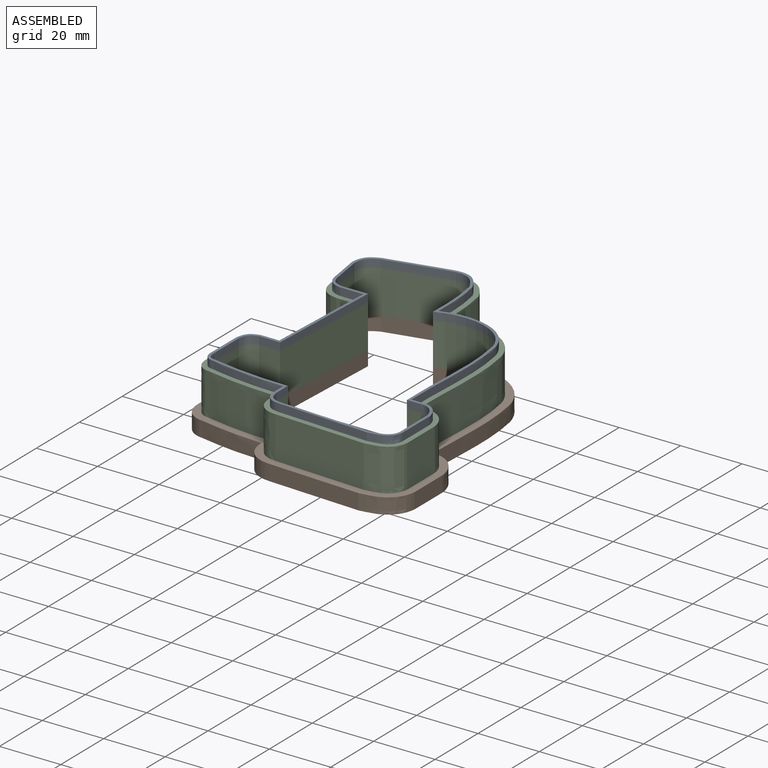
[diagram: assembled view]
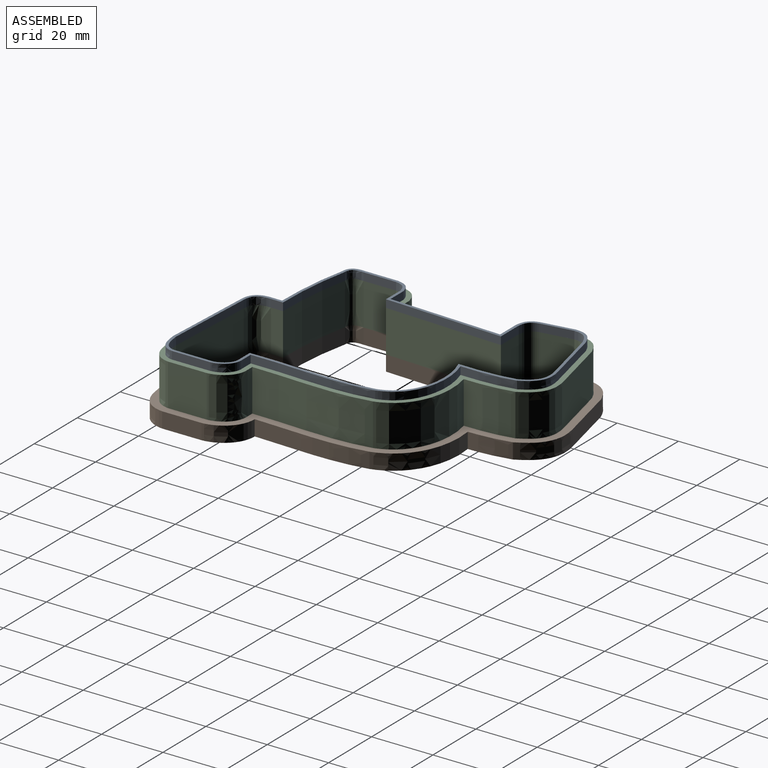
[diagram: assembled view, second angle]
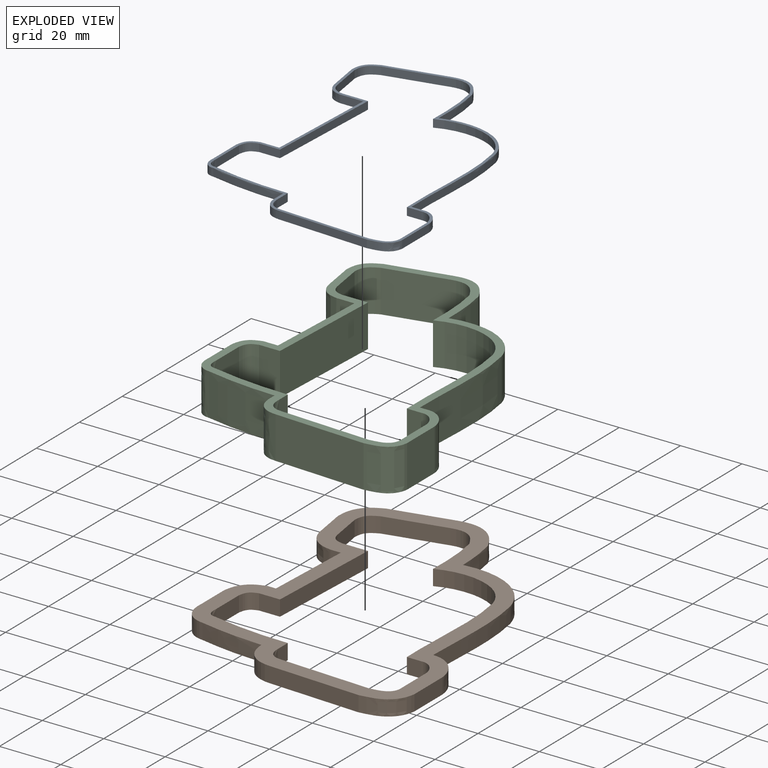
[diagram: exploded view]
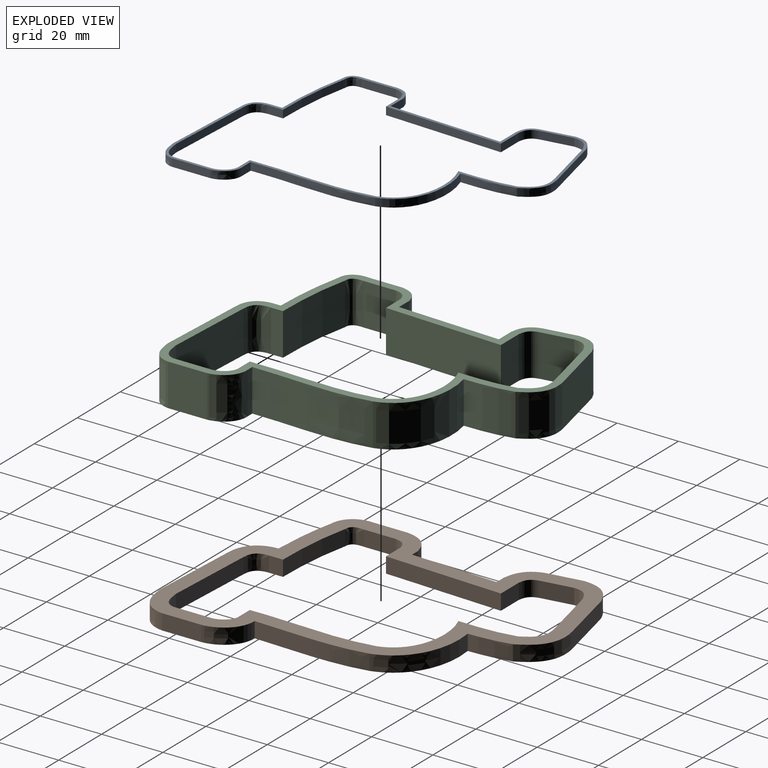
[diagram: exploded view, second angle]
ASSEMBLY  parts=3 mates=2
PART A: 46 faces, bbox 74.2x98.8x3.8 mm
  f0: plane 98.79x74.21mm, normal (0,0,1), area 290.3mm2, adj f2,f3,f4,f5,f6,f7,f8,f9
  f1: plane 98.79x74.21mm, normal (0,0,-1), area 290.3mm2, adj f2,f3,f4,f5,f6,f7,f8,f9
  f2: extruded ~25.53x11.36mm, area 78mm2, adj f0,f1,f3,f23
  f3: extruded ~17.56x2.54mm, area 44.8mm2, adj f0,f1,f2,f4
  f4: extruded ~10.86x6.12mm, area 34.6mm2, adj f0,f1,f3,f5
  f5: plane 19.61x4.57mm, normal (-0.23,0.97,0), area 51.1mm2, adj f0,f1,f4,f6
  f6: extruded ~6.75x5.02mm, area 23.1mm2, adj f0,f1,f5,f7
  f7: plane 9.9x2.54mm, normal (-0.99,-0.16,0), area 25.4mm2, adj f0,f1,f6,f8
  f8: extruded ~5.12x4.97mm, area 19.9mm2, adj f0,f1,f7,f9
  f9: plane 7.46x2.54mm, normal (0,-1,0), area 19mm2, adj f0,f1,f8,f10
  f10: plane 36.82x2.54mm, normal (-1,0.04,0), area 93.6mm2, adj f0,f1,f9,f11
  f11: plane 6.1x2.54mm, normal (0,1,0), area 15.5mm2, adj f0,f1,f10,f12
  f12: extruded ~4.88x4.43mm, area 18.1mm2, adj f0,f1,f11,f13
  f13: plane 10.63x2.54mm, normal (-1,0,0), area 27mm2, adj f0,f1,f12,f14
  f14: extruded ~5.12x3.49mm, area 18.1mm2, adj f0,f1,f13,f15
  f15: extruded ~24.52x2.54mm, area 62.7mm2, adj f0,f1,f14,f16
  f16: plane 3.03x2.54mm, normal (-1,0,0), area 7.7mm2, adj f0,f1,f15,f17
  f17: extruded ~6.54x5.45mm, area 24.8mm2, adj f0,f1,f16,f18
  f18: plane 29.6x2.54mm, normal (-0.05,-1,0), area 75.3mm2, adj f0,f1,f17,f19
  f19: extruded ~7.92x5.16mm, area 26.4mm2, adj f0,f1,f18,f20
  f20: plane 12.42x2.54mm, normal (1,0,0), area 31.5mm2, adj f0,f1,f19,f21
  f21: extruded ~6.27x6.23mm, area 24.9mm2, adj f0,f1,f20,f22
  f22: plane 3.79x2.54mm, normal (0,1,0), area 9.6mm2, adj f0,f1,f21,f23
  f23: extruded ~40.12x2.54mm, area 102.1mm2, adj f0,f1,f2,f22
  f24: extruded ~25.59x10.67mm, area 77.6mm2, adj f0,f1,f25,f45
  f25: extruded ~18.57x2.54mm, area 47.4mm2, adj f0,f1,f24,f26
  f26: extruded ~9.82x5.54mm, area 31.3mm2, adj f0,f1,f25,f27
  f27: plane 19.53x4.55mm, normal (0.23,-0.97,0), area 50.9mm2, adj f0,f1,f26,f28
  f28: extruded ~5.85x4.41mm, area 20.1mm2, adj f0,f1,f27,f29
  f29: plane 9.82x2.54mm, normal (0.99,0.16,0), area 25.2mm2, adj f0,f1,f28,f30
  f30: extruded ~4.3x4.21mm, area 16.9mm2, adj f0,f1,f29,f31
  f31: plane 8.33x2.54mm, normal (0,1,0), area 21.2mm2, adj f0,f1,f30,f32
  f32: plane 38.6x2.54mm, normal (1,-0.04,0), area 98.1mm2, adj f0,f1,f31,f33
  f33: plane 6.82x2.54mm, normal (0,-1,0), area 17.3mm2, adj f0,f1,f32,f34
  f34: extruded ~4.07x3.67mm, area 15.1mm2, adj f0,f1,f33,f35
  f35: plane 10.59x2.54mm, normal (1,0,0), area 26.9mm2, adj f0,f1,f34,f36
  f36: extruded ~4.2x2.7mm, area 14.7mm2, adj f0,f1,f35,f37
  f37: extruded ~25.31x2.54mm, area 64.7mm2, adj f0,f1,f36,f38
  f38: plane 3.93x2.54mm, normal (1,0,0), area 10mm2, adj f0,f1,f37,f39
  f39: extruded ~5.64x4.6mm, area 21.3mm2, adj f0,f1,f38,f40
  f40: plane 29.51x2.54mm, normal (0.05,1,0), area 75mm2, adj f0,f1,f39,f41
  f41: extruded ~7.08x4.33mm, area 23.1mm2, adj f0,f1,f40,f42
  f42: plane 12.33x2.54mm, normal (-1,0,0), area 31.3mm2, adj f0,f1,f41,f43
  f43: extruded ~5.37x5.34mm, area 21.3mm2, adj f0,f1,f42,f44
  f44: plane 4.7x2.54mm, normal (0,-1,0), area 11.9mm2, adj f0,f1,f43,f45
  f45: extruded ~40.81x2.54mm, area 103.9mm2, adj f0,f1,f24,f44
PART B: 44 faces, bbox 83.9x108.5x7.6 mm
  f0: plane 108.46x83.87mm, normal (0,0,1), area 1698.8mm2, adj f2,f3,f4,f5,f6,f7,f8,f9
  f1: plane 108.46x83.87mm, normal (0,0,-1), area 1698.8mm2, adj f2,f3,f4,f5,f6,f7,f8,f9
  f2: extruded ~25.38x14.6mm, area 162.2mm2, adj f0,f1,f3,f21
  f3: extruded ~13.68x5.08mm, area 69.9mm2, adj f0,f1,f2,f4
  f4: extruded ~15.78x8.86mm, area 100.2mm2, adj f0,f1,f3,f5
  f5: plane 19.99x5.08mm, normal (-0.23,0.97,0), area 104.3mm2, adj f0,f1,f4,f6
  f6: extruded ~11.01x7.89mm, area 74.3mm2, adj f0,f1,f5,f7
  f7: plane 10.26x5.08mm, normal (-0.99,-0.16,0), area 52.8mm2, adj f0,f1,f6,f8
  f8: extruded ~8.97x8.52mm, area 68.7mm2, adj f0,f1,f7,f9
  f9: plane 5.08x3.38mm, normal (0,-1,0), area 17.2mm2, adj f0,f1,f8,f10
  f10: plane 28.44x5.08mm, normal (-1,0.04,0), area 144.6mm2, adj f0,f1,f9,f11
  f11: plane 5.08x2.73mm, normal (0,1,0), area 13.9mm2, adj f0,f1,f10,f12
  f12: extruded ~8.71x7.98mm, area 64.7mm2, adj f0,f1,f11,f13
  f13: plane 10.83x5.08mm, normal (-1,0,0), area 55mm2, adj f0,f1,f12,f14
  f14: extruded ~9.46x7.17mm, area 67.9mm2, adj f0,f1,f13,f15
  f15: extruded ~20.85x5.08mm, area 106.8mm2, adj f0,f1,f14,f16
  f16: extruded ~9.65x9.45mm, area 76.7mm2, adj f0,f1,f15,f17
  f17: plane 30.01x5.08mm, normal (-0.05,-1,0), area 152.6mm2, adj f0,f1,f16,f18
  f18: extruded ~11.89x9.09mm, area 83.3mm2, adj f0,f1,f17,f19
  f19: plane 12.82x5.08mm, normal (1,0,0), area 65.1mm2, adj f0,f1,f18,f20
  f20: extruded ~10.3x10.1mm, area 81.2mm2, adj f0,f1,f19,f21
  f21: extruded ~36.86x5.08mm, area 187.6mm2, adj f0,f1,f2,f20
  f22: extruded ~25.59x10.67mm, area 155.1mm2, adj f0,f1,f23,f43
  f23: extruded ~18.57x5.08mm, area 94.8mm2, adj f0,f1,f22,f24
  f24: extruded ~9.82x5.54mm, area 62.7mm2, adj f0,f1,f23,f25
  f25: plane 19.53x5.08mm, normal (0.23,-0.97,0), area 101.9mm2, adj f0,f1,f24,f26
  f26: extruded ~5.85x5.08mm, area 40.3mm2, adj f0,f1,f25,f27
  f27: plane 9.82x5.08mm, normal (0.99,0.16,0), area 50.5mm2, adj f0,f1,f26,f28
  f28: extruded ~5.08x4.3mm, area 33.7mm2, adj f0,f1,f27,f29
  f29: plane 8.33x5.08mm, normal (0,1,0), area 42.3mm2, adj f0,f1,f28,f30
  f30: plane 38.6x5.08mm, normal (1,-0.04,0), area 196.3mm2, adj f0,f1,f29,f31
  f31: plane 6.82x5.08mm, normal (0,-1,0), area 34.6mm2, adj f0,f1,f30,f32
  f32: extruded ~5.08x4.07mm, area 30.2mm2, adj f0,f1,f31,f33
  f33: plane 10.59x5.08mm, normal (1,0,0), area 53.8mm2, adj f0,f1,f32,f34
  f34: extruded ~5.08x4.2mm, area 29.5mm2, adj f0,f1,f33,f35
  f35: extruded ~25.31x5.08mm, area 129.5mm2, adj f0,f1,f34,f36
  f36: plane 5.08x3.93mm, normal (1,0,0), area 20mm2, adj f0,f1,f35,f37
  f37: extruded ~5.64x5.08mm, area 42.7mm2, adj f0,f1,f36,f38
  f38: plane 29.51x5.08mm, normal (0.05,1,0), area 150.1mm2, adj f0,f1,f37,f39
  f39: extruded ~7.08x5.08mm, area 46.2mm2, adj f0,f1,f38,f40
  f40: plane 12.33x5.08mm, normal (-1,0,0), area 62.6mm2, adj f0,f1,f39,f41
  f41: extruded ~5.37x5.34mm, area 42.6mm2, adj f0,f1,f40,f42
  f42: plane 5.08x4.7mm, normal (0,-1,0), area 23.9mm2, adj f0,f1,f41,f43
  f43: extruded ~40.81x5.08mm, area 207.7mm2, adj f0,f1,f22,f42
PART C: 46 faces, bbox 79x103.5x16.4 mm
  f0: plane 103.53x78.95mm, normal (0,0,1), area 837.1mm2, adj f2,f3,f4,f5,f6,f7,f8,f9
  f1: plane 103.53x78.95mm, normal (0,0,-1), area 837.1mm2, adj f2,f3,f4,f5,f6,f7,f8,f9
  f2: extruded ~25.45x13.72mm, area 427.5mm2, adj f0,f1,f3,f23
  f3: extruded ~15.89x13.72mm, area 219.1mm2, adj f0,f1,f2,f4
  f4: extruded ~13.72x12.8mm, area 219.7mm2, adj f0,f1,f3,f5
  f5: plane 19.76x13.72mm, normal (-0.23,0.97,0), area 278.2mm2, adj f0,f1,f4,f6
  f6: extruded ~13.72x8.43mm, area 154.8mm2, adj f0,f1,f5,f7
  f7: plane 13.72x10.04mm, normal (-0.99,-0.16,0), area 139.4mm2, adj f0,f1,f6,f8
  f8: extruded ~13.72x6.64mm, area 137.8mm2, adj f0,f1,f7,f9
  f9: plane 13.72x5.85mm, normal (0,-1,0), area 80.3mm2, adj f0,f1,f8,f10
  f10: plane 33.52x13.72mm, normal (-1,0.04,0), area 460.2mm2, adj f0,f1,f9,f11
  f11: plane 13.72x4.77mm, normal (0,1,0), area 65.5mm2, adj f0,f1,f10,f12
  f12: extruded ~13.72x6.39mm, area 128.2mm2, adj f0,f1,f11,f13
  f13: plane 13.72x10.71mm, normal (-1,0,0), area 146.9mm2, adj f0,f1,f12,f14
  f14: extruded ~13.72x6.84mm, area 131.8mm2, adj f0,f1,f13,f15
  f15: extruded ~23.06x13.72mm, area 318.6mm2, adj f0,f1,f14,f16
  f16: plane 13.72x1.37mm, normal (-1,0,0), area 18.8mm2, adj f0,f1,f15,f17
  f17: extruded ~13.72x8.22mm, area 169.1mm2, adj f0,f1,f16,f18
  f18: plane 29.76x13.72mm, normal (-0.05,-1,0), area 408.6mm2, adj f0,f1,f17,f19
  f19: extruded ~13.72x9.48mm, area 175.7mm2, adj f0,f1,f18,f20
  f20: plane 13.72x12.58mm, normal (1,0,0), area 172.5mm2, adj f0,f1,f19,f21
  f21: extruded ~13.72x7.99mm, area 170.3mm2, adj f0,f1,f20,f22
  f22: plane 13.72x2.11mm, normal (0,1,0), area 28.9mm2, adj f0,f1,f21,f23
  f23: extruded ~38.84x13.72mm, area 534.1mm2, adj f0,f1,f2,f22
  f24: extruded ~25.59x13.72mm, area 418.9mm2, adj f0,f1,f25,f45
  f25: extruded ~18.57x13.72mm, area 255.9mm2, adj f0,f1,f24,f26
  f26: extruded ~13.72x9.82mm, area 169.2mm2, adj f0,f1,f25,f27
  f27: plane 19.53x13.72mm, normal (0.23,-0.97,0), area 275mm2, adj f0,f1,f26,f28
  f28: extruded ~13.72x5.85mm, area 108.8mm2, adj f0,f1,f27,f29
  f29: plane 13.72x9.82mm, normal (0.99,0.16,0), area 136.3mm2, adj f0,f1,f28,f30
  f30: extruded ~13.72x4.3mm, area 91.1mm2, adj f0,f1,f29,f31
  f31: plane 13.72x8.33mm, normal (0,1,0), area 114.2mm2, adj f0,f1,f30,f32
  f32: plane 38.6x13.72mm, normal (1,-0.04,0), area 529.9mm2, adj f0,f1,f31,f33
  f33: plane 13.72x6.82mm, normal (0,-1,0), area 93.5mm2, adj f0,f1,f32,f34
  f34: extruded ~13.72x4.07mm, area 81.4mm2, adj f0,f1,f33,f35
  f35: plane 13.72x10.59mm, normal (1,0,0), area 145.3mm2, adj f0,f1,f34,f36
  f36: extruded ~13.72x4.2mm, area 79.6mm2, adj f0,f1,f35,f37
  f37: extruded ~25.31x13.72mm, area 349.5mm2, adj f0,f1,f36,f38
  f38: plane 13.72x3.93mm, normal (1,0,0), area 54mm2, adj f0,f1,f37,f39
  f39: extruded ~13.72x5.64mm, area 115.3mm2, adj f0,f1,f38,f40
  f40: plane 29.51x13.72mm, normal (0.05,1,0), area 405.2mm2, adj f0,f1,f39,f41
  f41: extruded ~13.72x7.08mm, area 124.8mm2, adj f0,f1,f40,f42
  f42: plane 13.72x12.33mm, normal (-1,0,0), area 169.1mm2, adj f0,f1,f41,f43
  f43: extruded ~13.72x5.37mm, area 115.1mm2, adj f0,f1,f42,f44
  f44: plane 13.72x4.7mm, normal (0,-1,0), area 64.4mm2, adj f0,f1,f43,f45
  f45: extruded ~40.81x13.72mm, area 560.9mm2, adj f0,f1,f24,f44
PLACE A t=(78.59,23.4,18.8)mm
PLACE B at identity
PLACE C t=(160.01,5.3,5.08)mm
MATE fastened A.f1 <-> C.f0  axis (0,0,1) through (36.88,6.52,18.8)mm
MATE fastened C.f1 <-> B.f0  axis (0,0,-1) through (36.88,6.52,5.08)mm
